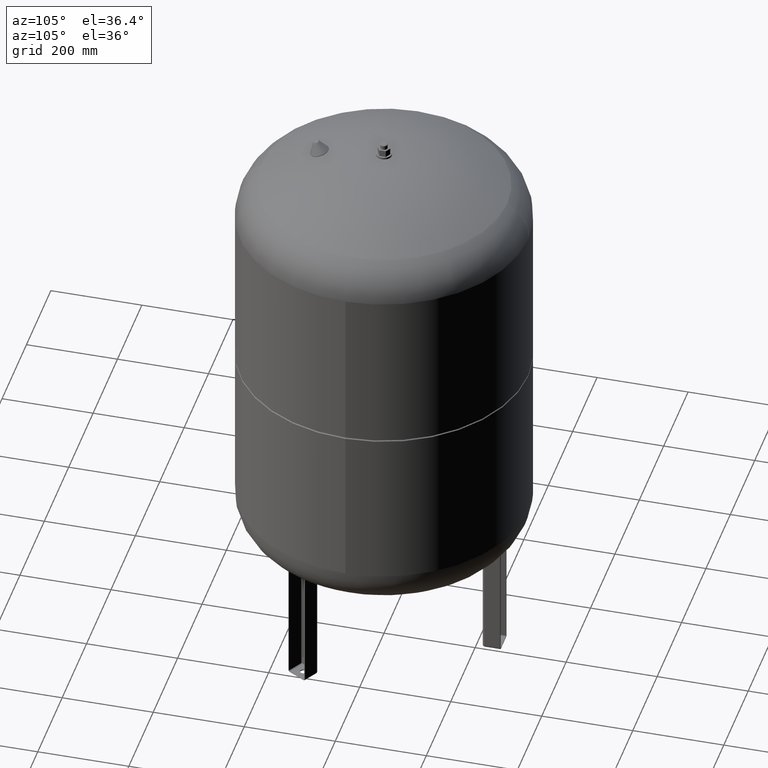
[diagram: clean part render]
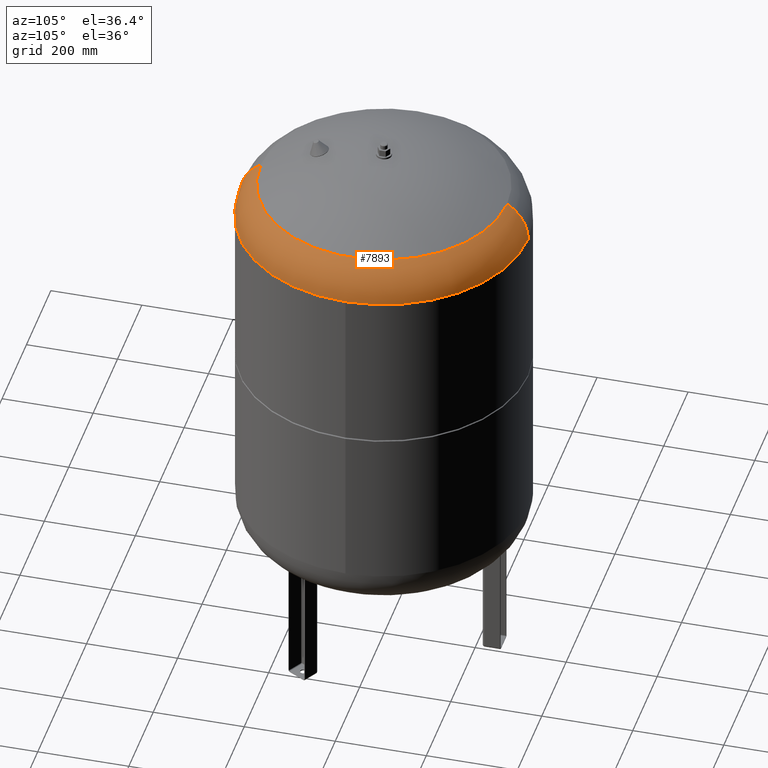
[diagram: same view with one face highlighted and labeled with its STEP entity id]
A machine part, auxiliary view. The second image highlights one B-rep face of the part: STEP entity #7893.
In plain terms, the highlighted toroidal blend (fillet) surface has major radius 218 mm and minor (blend) radius 99 mm.
Its self-contained STEP definition (entity closure, byte-faithful):
#7779=CARTESIAN_POINT('',(317.0,1.070453E-014,1076.240550627371200));
#7780=VERTEX_POINT('',#7779);
#7787=CARTESIAN_POINT('',(-3.882002E-014,-317.0,1076.240550627371200));
#7788=VERTEX_POINT('',#7787);
#7789=CARTESIAN_POINT('',(-1.556097E-014,4.952455E-014,1076.240550627371200));
#7790=DIRECTION('',(0.0,0.0,-1.0));
#7791=DIRECTION('',(-1.0,0.0,0.0));
#7792=AXIS2_PLACEMENT_3D('',#7789,#7790,#7791);
#7793=CIRCLE('',#7792,317.000000000000060);
#7794=EDGE_CURVE('',#7780,#7788,#7793,.T.);
#7811=CARTESIAN_POINT('',(6.180908E-030,317.000000000000110,1076.240550627371200));
#7812=VERTEX_POINT('',#7811);
#7813=CARTESIAN_POINT('',(8.065826E-015,270.639024390243830,1160.086439681297600));
#7814=VERTEX_POINT('',#7813);
#7815=CARTESIAN_POINT('',(0.0,218.000000000000060,1076.240550627371200));
#7816=DIRECTION('',(1.0,0.0,0.0));
#7817=DIRECTION('',(0.0,1.0,0.0));
#7818=AXIS2_PLACEMENT_3D('',#7815,#7816,#7817);
#7819=CIRCLE('',#7818,99.0);
#7820=EDGE_CURVE('',#7812,#7814,#7819,.T.);
#7830=CARTESIAN_POINT('',(-2.507680E-014,-270.639024390243830,1160.086439681297600));
#7831=VERTEX_POINT('',#7830);
#7832=CARTESIAN_POINT('',(-2.669642E-014,-217.999999999999940,1076.240550627371200));
#7833=DIRECTION('',(-1.0,0.0,0.0));
#7834=DIRECTION('',(0.0,-1.0,0.0));
#7835=AXIS2_PLACEMENT_3D('',#7832,#7833,#7834);
#7836=CIRCLE('',#7835,99.0);
#7837=EDGE_CURVE('',#7788,#7831,#7836,.T.);
#7865=CARTESIAN_POINT('',(-7.495146E-015,2.385415E-014,1160.086439681297600));
#7866=DIRECTION('',(0.0,0.0,-1.0));
#7867=DIRECTION('',(-1.0,0.0,0.0));
#7868=AXIS2_PLACEMENT_3D('',#7865,#7866,#7867);
#7869=CIRCLE('',#7868,270.639024390243830);
#7870=EDGE_CURVE('',#7814,#7831,#7869,.T.);
#7875=CARTESIAN_POINT('',(0.0,4.952455E-014,1076.240550627371200));
#7876=DIRECTION('',(-9.619823E-017,3.061617E-016,-1.0));
#7877=DIRECTION('',(0.0,1.0,0.0));
#7878=AXIS2_PLACEMENT_3D('',#7875,#7876,#7877);
#7879=TOROIDAL_SURFACE('',#7878,218.0,99.0);
#7880=ORIENTED_EDGE('',*,*,#7820,.T.);
#7881=ORIENTED_EDGE('',*,*,#7870,.T.);
#7882=ORIENTED_EDGE('',*,*,#7837,.F.);
#7883=ORIENTED_EDGE('',*,*,#7794,.F.);
#7884=CARTESIAN_POINT('',(-1.556097E-014,4.952455E-014,1076.240550627371200));
#7885=DIRECTION('',(0.0,0.0,-1.0));
#7886=DIRECTION('',(-1.0,0.0,0.0));
#7887=AXIS2_PLACEMENT_3D('',#7884,#7885,#7886);
#7888=CIRCLE('',#7887,317.000000000000060);
#7889=EDGE_CURVE('',#7812,#7780,#7888,.T.);
#7890=ORIENTED_EDGE('',*,*,#7889,.F.);
#7891=EDGE_LOOP('',(#7880,#7881,#7882,#7883,#7890));
#7892=FACE_OUTER_BOUND('',#7891,.T.);
#7893=ADVANCED_FACE('',(#7892),#7879,.T.);